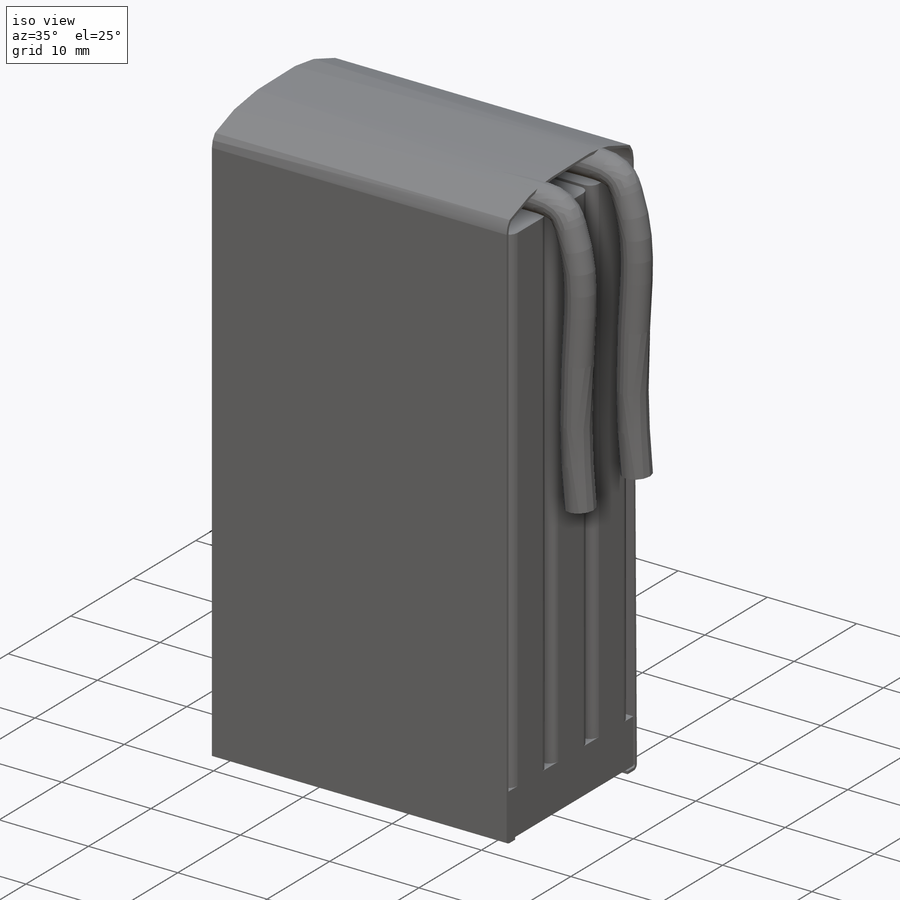
[diagram: iso view]
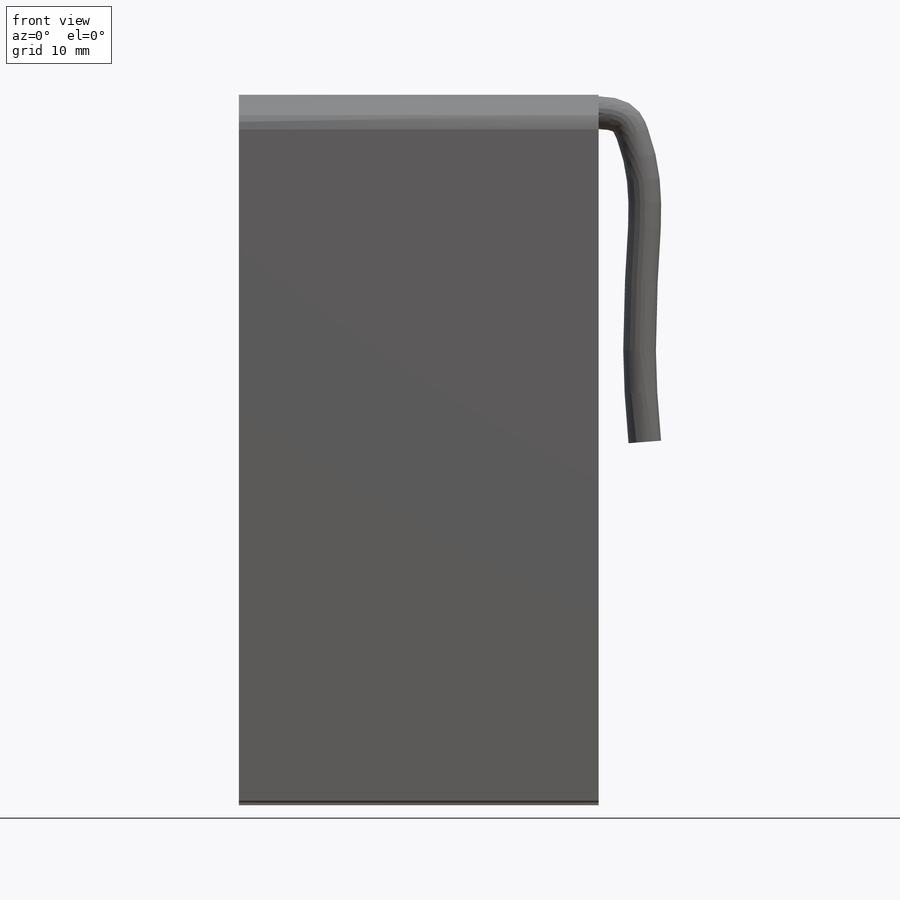
[diagram: front view]
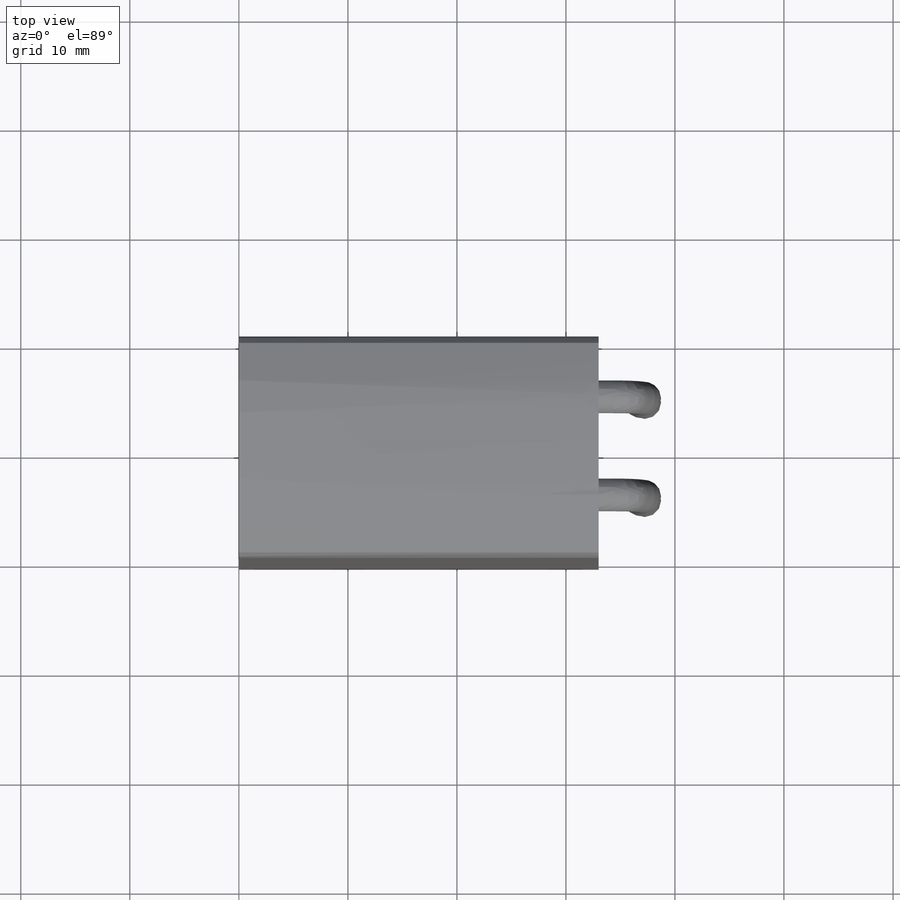
[diagram: top view]
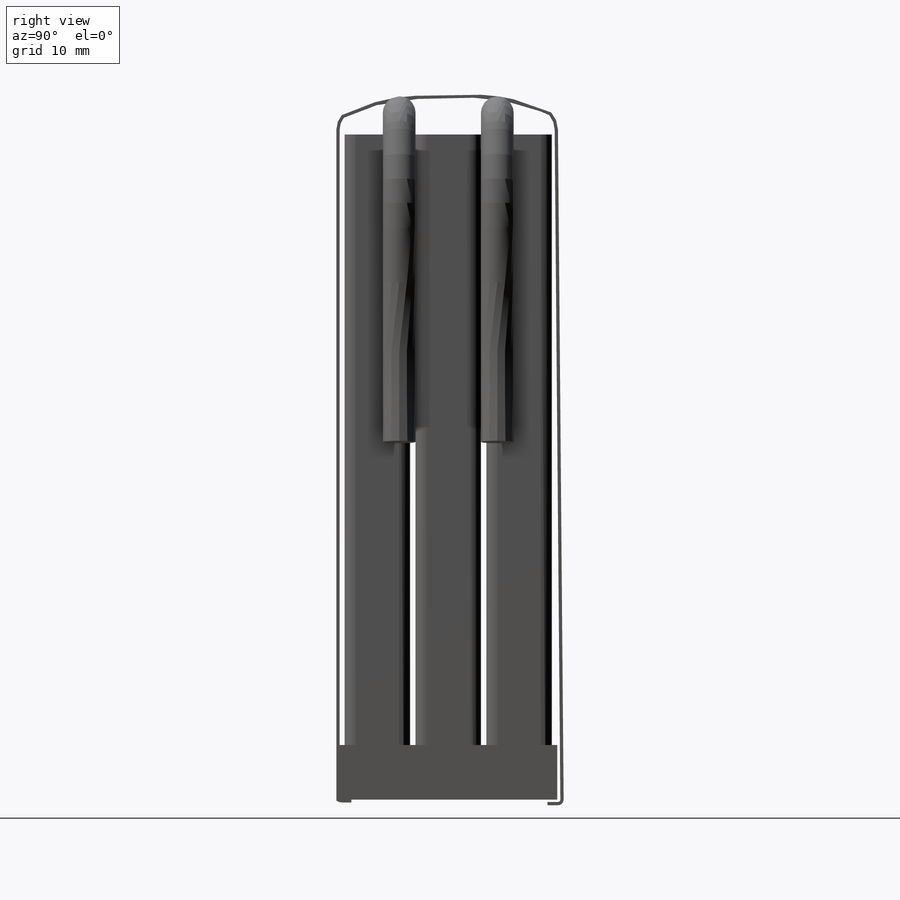
[diagram: right view]
SOLIDWORKS PART (.sldprt)
format: sldprt  version: not decoded by parser v0  size: 501,760 bytes
history: native  units: mm
features: sketch x7, extrude x2, plane x2, sweep x2, material x1 (+11 scaffold rows collapsed)
feature tree (25):
  scaffold x11  (default folders/planes/origin — collapsed)
  material  "Material <not specified>"
  sketch  "Sketch1"  dims[D1=33.0mm D2=20.0mm]
  extrude  "Extrude1"  Depth=5mm
  sketch  "Sketch2"  dims[D6=1.0mm D1=6.0mm D2=6.0mm D3=6.0mm D4=0.5mm D5=0.5mm]
  extrude  "Extrude2"  Depth=56mm
  sketch  "Sketch3"  dims[D1=33.0mm D5=0.3mm D6=1.0mm D7=5.0mm]
  plane  "Plane1"  Offset=18mm
  sketch  "Sketch4"  dims[D1=3.0mm]
  plane  "Plane2"
  sketch  "Sketch5"
  sketch  "Sketch6"
  sweep  "Sweep1"
  sweep  "Sweep2"
  sketch  "Sketch5<2>"
decode coverage: 6 of 11 modeling features carry decoded parameters
note: suppression state not decoded; provenance and decode notes live in map.json
